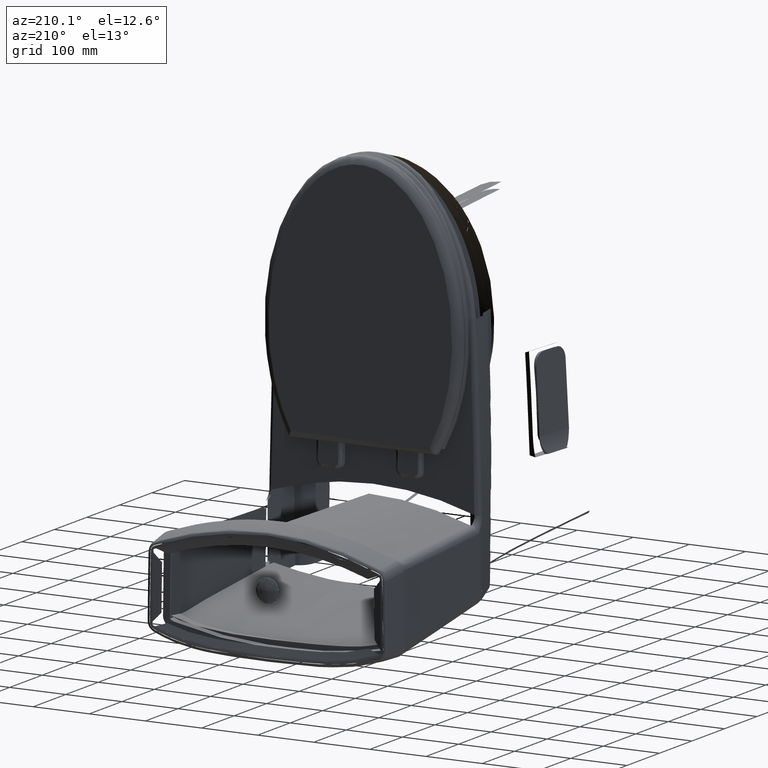
[diagram: clean part render]
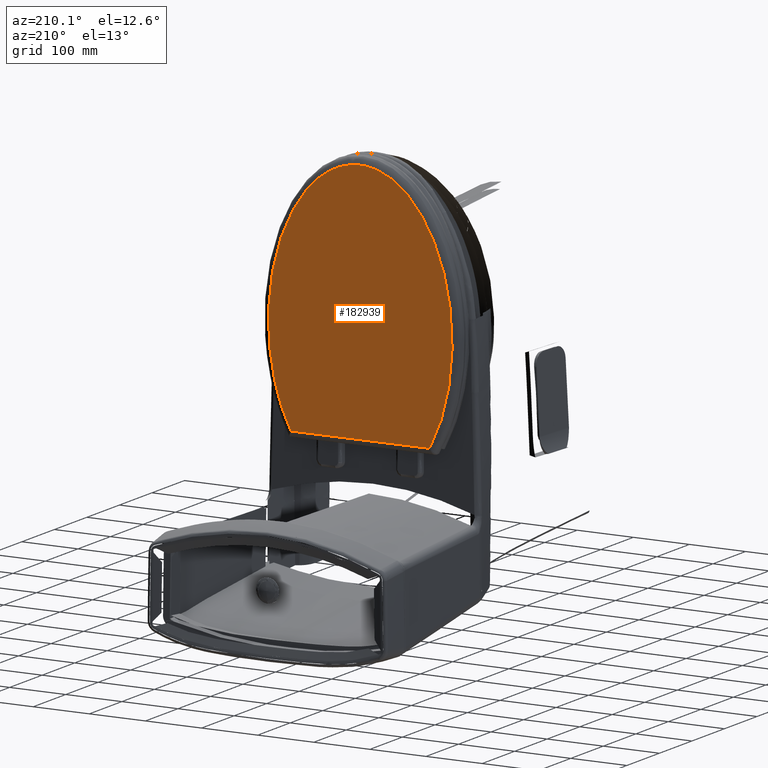
[diagram: same view with one face highlighted and labeled with its STEP entity id]
A machine part, auxiliary view. The second image highlights one B-rep face of the part: STEP entity #182939.
In plain terms, the highlighted planar face has unit normal (-0, 1, -0.005).
Its self-contained STEP definition (entity closure, byte-faithful):
#129 = CARTESIAN_POINT ( 'NONE',  ( 4.069400003222430200, -15.65548688357806000, 1.597295641101409200 ) ) ;
#767 = CARTESIAN_POINT ( 'NONE',  ( 5.865025075325847900, -11.90679658877258600, 1.578623984078401500 ) ) ;
#1381 = CARTESIAN_POINT ( 'NONE',  ( 3.672949090406367700, -16.14588716466432300, 1.599738250313174300 ) ) ;
#2007 = CARTESIAN_POINT ( 'NONE',  ( 6.440038422051012300, -8.012625528237274300, 1.559227708590661000 ) ) ;
#2630 = CARTESIAN_POINT ( 'NONE',  ( 6.433916513198163000, -8.231039045255238700, 1.560315593213276800 ) ) ;
#5470 = CARTESIAN_POINT ( 'NONE',  ( -4.843367208626697000, -0.9184416836992597100, 1.523892646446414200 ) ) ;
#5617 = ORIENTED_EDGE ( 'NONE', *, *, #38883, .T. ) ;
#5770 = CARTESIAN_POINT ( 'NONE',  ( 6.210670454255349200, -4.858357334867831900, 1.543516776609041600 ) ) ;
#8501 = CARTESIAN_POINT ( 'NONE',  ( -5.277233186623759800, -13.62511940719110400, 1.587182682142263700 ) ) ;
#9149 = CARTESIAN_POINT ( 'NONE',  ( -5.934464771579540900, -11.72364766561864400, 1.577711739133099000 ) ) ;
#9787 = CARTESIAN_POINT ( 'NONE',  ( -4.161075554060333000, -15.58274368989862400, 1.596933312756539000 ) ) ;
#10427 = CARTESIAN_POINT ( 'NONE',  ( -4.840094247583069300, -14.51242552880827900, 1.591602219752103400 ) ) ;
#11020 = CARTESIAN_POINT ( 'NONE',  ( -3.614086998906128800, -16.25145298579960600, 1.600264052780508500 ) ) ;
#11645 = CARTESIAN_POINT ( 'NONE',  ( 0.6032471218923791700, -17.97931753702635000, 1.608870287073928000 ) ) ;
#12297 = CARTESIAN_POINT ( 'NONE',  ( 2.690971611304584100, -17.05637485261728200, 1.604273250839597800 ) ) ;
#12919 = CARTESIAN_POINT ( 'NONE',  ( 3.239785896182616000, -16.58859777829604100, 1.601943324494300000 ) ) ;
#13566 = CARTESIAN_POINT ( 'NONE',  ( -0.03080844416650840200, -18.02843452345327100, 1.609114930914043100 ) ) ;
#14203 = CARTESIAN_POINT ( 'NONE',  ( -2.242440328702441000, -17.39201429221347800, 1.605945016710814500 ) ) ;
#14836 = CARTESIAN_POINT ( 'NONE',  ( 5.543238732184320000, -12.90199843127397700, 1.583580933412734900 ) ) ;
#15456 = CARTESIAN_POINT ( 'NONE',  ( 6.310426043309038700, -9.716157666724386700, 1.567712743907604800 ) ) ;
#16090 = CARTESIAN_POINT ( 'NONE',  ( 4.747923696945586700, -14.61978294850862300, 1.592136957221598400 ) ) ;
#16722 = CARTESIAN_POINT ( 'NONE',  ( 5.177478956724396400, -13.78153451233379900, 1.587961769089488700 ) ) ;
#17331 = CARTESIAN_POINT ( 'NONE',  ( 5.256157702013959800, -13.60481987445629800, 1.587081580312898400 ) ) ;
#18116 = CARTESIAN_POINT ( 'NONE',  ( -6.145464384096539100, -4.578808802823749200, 1.542124379448204200 ) ) ;
#18597 = CARTESIAN_POINT ( 'NONE',  ( 6.162970998328265000, -4.586811592097387100, 1.542164248386271400 ) ) ;
#18763 = CARTESIAN_POINT ( 'NONE',  ( -4.946915630498101500, -1.104943266292949000, 1.524821582494672300 ) ) ;
#19341 = B_SPLINE_CURVE_WITH_KNOTS ( 'NONE', 4,
 ( #152886, #182499, #172132, #141881, #97539 ),
 .UNSPECIFIED., .F., .F.,
 ( 5, 5 ),
 ( 0.0000000000000000000, 1.000000000000000000 ),
 .UNSPECIFIED. ) ;
#19391 = CARTESIAN_POINT ( 'NONE',  ( -5.732065097115504500, -2.959365181983500300, 1.534058176484057300 ) ) ;
#19867 = CARTESIAN_POINT ( 'NONE',  ( 6.091300861494806500, -4.229640311036819300, 1.540385232318129300 ) ) ;
#22654 = CARTESIAN_POINT ( 'NONE',  ( -5.256627545298639100, -1.743600033354797200, 1.528002634852340100 ) ) ;
#23305 = CARTESIAN_POINT ( 'NONE',  ( -6.037799365074866000, -11.32048193964094600, 1.575703631684245000 ) ) ;
#23937 = CARTESIAN_POINT ( 'NONE',  ( -5.141795464532712000, -13.92708097973413000, 1.588686707062338300 ) ) ;
#24562 = CARTESIAN_POINT ( 'NONE',  ( -3.260507881654243000, -16.61242208023816100, 1.602061985370639900 ) ) ;
#25200 = CARTESIAN_POINT ( 'NONE',  ( -6.114569675268376700, -10.96768671106536200, 1.573946412066898700 ) ) ;
#25232 = VERTEX_POINT ( 'NONE', #138382 ) ;
#25828 = CARTESIAN_POINT ( 'NONE',  ( -5.368508614368589200, -13.40546423938080700, 1.586088612979886300 ) ) ;
#26436 = CARTESIAN_POINT ( 'NONE',  ( 2.069811150086196400, -17.46383646001126900, 1.606302754936673300 ) ) ;
#27045 = CARTESIAN_POINT ( 'NONE',  ( -2.604584177143951100, -17.15002885004663100, 1.604739723654399000 ) ) ;
#27690 = CARTESIAN_POINT ( 'NONE',  ( 3.344764685470877900, -16.48659053932183100, 1.601435241967050800 ) ) ;
#28324 = CARTESIAN_POINT ( 'NONE',  ( -0.5213275860971441400, -18.00202621375120400, 1.608983394796632300 ) ) ;
#28960 = CARTESIAN_POINT ( 'NONE',  ( 1.653052129553447700, -17.66611326467293400, 1.607310264765141400 ) ) ;
#29604 = CARTESIAN_POINT ( 'NONE',  ( 4.080446047354328700, -15.64083980113032100, 1.597222686210979100 ) ) ;
#30234 = CARTESIAN_POINT ( 'NONE',  ( 5.419954078659437800, -13.21887531673693900, 1.585159249072408700 ) ) ;
#30853 = CARTESIAN_POINT ( 'NONE',  ( 6.346375006816735700, -9.409342126751987200, 1.566184542226387100 ) ) ;
#31461 = CARTESIAN_POINT ( 'NONE',  ( 6.408432481200085500, -6.514549738611598300, 1.551766020101409200 ) ) ;
#37379 = CARTESIAN_POINT ( 'NONE',  ( -6.292283176620559400, -5.422189804190006500, 1.546325132299353000 ) ) ;
#38028 = CARTESIAN_POINT ( 'NONE',  ( -6.382199338456605800, -9.148109200197446000, 1.564883372070816200 ) ) ;
#38655 = CARTESIAN_POINT ( 'NONE',  ( -6.407744778053883600, -8.838349010887284900, 1.563340503496264400 ) ) ;
#38883 = EDGE_CURVE ( 'NONE', #169061, #25232, #169808, .T. ) ;
#39305 = CARTESIAN_POINT ( 'NONE',  ( -6.434958249168718500, -8.403694287343975900, 1.561175554173902500 ) ) ;
#39932 = CARTESIAN_POINT ( 'NONE',  ( -4.183102891497660500, -15.55274541872660000, 1.596783895899426300 ) ) ;
#40553 = CARTESIAN_POINT ( 'NONE',  ( 1.706101795605865100, -17.64238892605176500, 1.607192097465590200 ) ) ;
#41171 = CARTESIAN_POINT ( 'NONE',  ( 2.433206898980755400, -17.23651542268814700, 1.605170503545081800 ) ) ;
#41809 = CARTESIAN_POINT ( 'NONE',  ( 2.523050405837422300, -17.17488219950469000, 1.604863517861470100 ) ) ;
#42420 = CARTESIAN_POINT ( 'NONE',  ( 2.312789955387967400, -17.31570454275775400, 1.605564932469897500 ) ) ;
#43063 = CARTESIAN_POINT ( 'NONE',  ( 1.466791874870594600, -17.74412844318643300, 1.607698846420808800 ) ) ;
#43714 = CARTESIAN_POINT ( 'NONE',  ( 3.886759489582142000, -15.88969891090966900, 1.598462215591139000 ) ) ;
#44361 = CARTESIAN_POINT ( 'NONE',  ( 4.213624069886742000, -15.46312025920695500, 1.596337492196197000 ) ) ;
#44977 = CARTESIAN_POINT ( 'NONE',  ( 4.715409742420985300, -14.67674905934903900, 1.592420696764412300 ) ) ;
#45594 = CARTESIAN_POINT ( 'NONE',  ( 6.099745799783525200, -10.94994797140394000, 1.573858066287440600 ) ) ;
#46251 = CARTESIAN_POINT ( 'NONE',  ( 6.372274619299187900, -6.048483420473845100, 1.549444614380939300 ) ) ;
#46401 = CARTESIAN_POINT ( 'NONE',  ( -6.375768123877018700, -6.160365284196709400, 1.550001872435466500 ) ) ;
#48284 = CARTESIAN_POINT ( 'NONE',  ( -5.334250159793327800, -1.922533202639473700, 1.528893873798349700 ) ) ;
#48910 = CARTESIAN_POINT ( 'NONE',  ( -5.399196711148298400, -2.077829274865056900, 1.529667379954720700 ) ) ;
#50257 = ORIENTED_EDGE ( 'NONE', *, *, #171492, .F. ) ;
#52145 = CARTESIAN_POINT ( 'NONE',  ( -3.397460222696711400, -16.47605921649287100, 1.601382782520846400 ) ) ;
#52798 = CARTESIAN_POINT ( 'NONE',  ( -6.302365967390750600, -9.885984463040177400, 1.568558616980301600 ) ) ;
#53429 = CARTESIAN_POINT ( 'NONE',  ( -5.373895902834664900, -13.39243683525595000, 1.586023725450687500 ) ) ;
#54068 = CARTESIAN_POINT ( 'NONE',  ( -5.830292379472838100, -12.09307584226028000, 1.579551804962348700 ) ) ;
#54701 = CARTESIAN_POINT ( 'NONE',  ( -5.854999127531690400, -12.00816139365108100, 1.579128858946415200 ) ) ;
#55005 = PLANE ( 'NONE',  #96593 ) ;
#55334 = CARTESIAN_POINT ( 'NONE',  ( -1.870863425078545400, -17.58844107492598100, 1.606923388995434000 ) ) ;
#55958 = CARTESIAN_POINT ( 'NONE',  ( 2.493147256012622700, -17.19564007229262300, 1.604966909659816700 ) ) ;
#56583 = CARTESIAN_POINT ( 'NONE',  ( 3.324645727357116200, -16.50642636625173100, 1.601534041201283500 ) ) ;
#57191 = CARTESIAN_POINT ( 'NONE',  ( -1.808289936515345500, -17.61814109420706100, 1.607071320332282600 ) ) ;
#57826 = CARTESIAN_POINT ( 'NONE',  ( -0.9145506042730667800, -17.92794310301516300, 1.608614397785874500 ) ) ;
#58462 = CARTESIAN_POINT ( 'NONE',  ( 6.130226392080721200, -10.80179953566266500, 1.573120161402019800 ) ) ;
#59104 = CARTESIAN_POINT ( 'NONE',  ( 4.091450723652078700, -15.62620445900413200, 1.597149789797283300 ) ) ;
#59737 = CARTESIAN_POINT ( 'NONE',  ( 6.397131640090618600, -6.359275979313374600, 1.550992625031194700 ) ) ;
#60366 = CARTESIAN_POINT ( 'NONE',  ( 4.576569096258870300, -14.91218669100973500, 1.593593375832943500 ) ) ;
#60958 = CARTESIAN_POINT ( 'NONE',  ( 6.274548144938496100, -5.251549668137958100, 1.545475208073860500 ) ) ;
#61110 = CARTESIAN_POINT ( 'NONE',  ( -6.381477519097516400, -6.222328299197129400, 1.550310500818581800 ) ) ;
#61732 = CARTESIAN_POINT ( 'NONE',  ( -5.372312489906963900, -2.012908112441655500, 1.529344017501817800 ) ) ;
#62353 = CARTESIAN_POINT ( 'NONE',  ( -6.234911822741016100, -5.058718759798943600, 1.544514738151391500 ) ) ;
#63459 = CARTESIAN_POINT ( 'NONE',  ( 6.215864464768158000, -4.888453659806001100, 1.543666681845810700 ) ) ;
#63623 = CARTESIAN_POINT ( 'NONE',  ( -5.928417865437961800, -3.641640996259315300, 1.537456488781288300 ) ) ;
#66844 = CARTESIAN_POINT ( 'NONE',  ( -4.807989323986355100, -14.57052235676041400, 1.591891591268837800 ) ) ;
#67502 = CARTESIAN_POINT ( 'NONE',  ( -6.346624996539056000, -9.518684598972582100, 1.566729151993624200 ) ) ;
#68122 = CARTESIAN_POINT ( 'NONE',  ( -6.431862285599835100, -6.905028328967998300, 1.553710926166829200 ) ) ;
#68769 = CARTESIAN_POINT ( 'NONE',  ( -6.446899224035910000, -7.560542173439328600, 1.556975941270001700 ) ) ;
#69398 = CARTESIAN_POINT ( 'NONE',  ( -5.879355166931157200, -11.92312335176736600, 1.578705297331347100 ) ) ;
#69999 = CARTESIAN_POINT ( 'NONE',  ( 1.217024772801232200, -17.83599212453439600, 1.608156405327686900 ) ) ;
#70614 = CARTESIAN_POINT ( 'NONE',  ( 2.548594409198250900, -17.15695886193912000, 1.604774244450555300 ) ) ;
#71263 = CARTESIAN_POINT ( 'NONE',  ( -0.7383375968364149800, -17.96664948624503600, 1.608807188532836300 ) ) ;
#71896 = CARTESIAN_POINT ( 'NONE',  ( -2.450353956195756600, -17.25893993977663900, 1.605282193389852500 ) ) ;
#72521 = CARTESIAN_POINT ( 'NONE',  ( 0.8467442703912430000, -17.93155620085119400, 1.608632395260242400 ) ) ;
#73159 = CARTESIAN_POINT ( 'NONE',  ( 6.442116602671370100, -7.168163547631855300, 1.555021571448645500 ) ) ;
#73803 = CARTESIAN_POINT ( 'NONE',  ( 4.754365906586535600, -14.60841612112686300, 1.592080340781425000 ) ) ;
#74416 = CARTESIAN_POINT ( 'NONE',  ( 5.327498664031846700, -13.43866568446298100, 1.586253991521813200 ) ) ;
#75026 = CARTESIAN_POINT ( 'NONE',  ( 6.443347284663992100, -7.825225434568351600, 1.558294297127637500 ) ) ;
#75649 = CARTESIAN_POINT ( 'NONE',  ( 6.189264520936687200, -10.50366832628606200, 1.571635215070838800 ) ) ;
#75797 = CARTESIAN_POINT ( 'NONE',  ( -6.384250125969114900, -6.253404599518815700, 1.550465287158872200 ) ) ;
#76262 = CARTESIAN_POINT ( 'NONE',  ( 5.822418329154587900, -3.190487437748997100, 1.535209369164152600 ) ) ;
#77518 = CARTESIAN_POINT ( 'NONE',  ( 5.948646904430016300, -3.648412756840125700, 1.537490225862603100 ) ) ;
#78176 = CARTESIAN_POINT ( 'NONE',  ( 5.524530182558190300, -2.313687953378887200, 1.530842163615534700 ) ) ;
#78332 = CARTESIAN_POINT ( 'NONE',  ( -5.095390499239584900, -1.393000296064188700, 1.526256350804023200 ) ) ;
#78811 = CARTESIAN_POINT ( 'NONE',  ( 5.584818168098157900, -2.474124139212982700, 1.531641271982799600 ) ) ;
#81636 = CARTESIAN_POINT ( 'NONE',  ( -6.390420588443705100, -9.055245738524558200, 1.564420833236580100 ) ) ;
#82268 = CARTESIAN_POINT ( 'NONE',  ( -4.820851850595934400, -14.54730906258216900, 1.591775969359984900 ) ) ;
#82917 = CARTESIAN_POINT ( 'NONE',  ( -3.833332233151834700, -16.00635453571125700, 1.599043254399294100 ) ) ;
#83558 = CARTESIAN_POINT ( 'NONE',  ( -6.171929515866279000, -10.66950363016113600, 1.572461207293410800 ) ) ;
#84187 = CARTESIAN_POINT ( 'NONE',  ( -5.437502818313849000, -13.23590976879510400, 1.585244087812349700 ) ) ;
#84802 = CARTESIAN_POINT ( 'NONE',  ( -1.749965474951093100, -17.64497014329156200, 1.607204951798839400 ) ) ;
#85427 = CARTESIAN_POINT ( 'NONE',  ( 3.125730824102444400, -16.69528635384018500, 1.602474724043436900 ) ) ;
#86055 = CARTESIAN_POINT ( 'NONE',  ( -1.010006099088360400, -17.90534347177525000, 1.608501832383704100 ) ) ;
#86677 = CARTESIAN_POINT ( 'NONE',  ( -1.136906458264120800, -17.87213156727374800, 1.608336408835658000 ) ) ;
#87311 = CARTESIAN_POINT ( 'NONE',  ( -1.389426146062619600, -17.79515097136230000, 1.607952979984765400 ) ) ;
#87931 = CARTESIAN_POINT ( 'NONE',  ( 3.482718393622271400, -16.34972948325494700, 1.600753557881237300 ) ) ;
#88566 = CARTESIAN_POINT ( 'NONE',  ( 6.356271126932884200, -9.317036094291257300, 1.565724779874730500 ) ) ;
#89199 = CARTESIAN_POINT ( 'NONE',  ( 3.348742662757171500, -16.48265342123642400, 1.601415631781224300 ) ) ;
#89822 = CARTESIAN_POINT ( 'NONE',  ( 6.384753364264200000, -9.038878837808599800, 1.564339320755273800 ) ) ;
#90439 = CARTESIAN_POINT ( 'NONE',  ( 6.055135896807021500, -11.15614724385594200, 1.574885113583175400 ) ) ;
#91064 = CARTESIAN_POINT ( 'NONE',  ( 5.462961364912338500, -2.154330155086594100, 1.530048426532321300 ) ) ;
#91225 = CARTESIAN_POINT ( 'NONE',  ( -6.109500475663167200, -4.400185698024191800, 1.541234684858455100 ) ) ;
#92352 = CARTESIAN_POINT ( 'NONE',  ( 5.087245561531357700, -1.282937966627569500, 1.525708153852922900 ) ) ;
#96386 = CARTESIAN_POINT ( 'NONE',  ( -5.384595292956092300, -13.36643727635388000, 1.585894225580968000 ) ) ;
#96593 = AXIS2_PLACEMENT_3D ( 'NONE', #141046, #143591, #187347 ) ;
#97046 = CARTESIAN_POINT ( 'NONE',  ( -6.444379004648611800, -7.341739954187627100, 1.555886120578052500 ) ) ;
#97539 = CARTESIAN_POINT ( 'NONE',  ( 4.882393465144085500, -0.9073392971712737100, 1.523837353666613900 ) ) ;
#97676 = CARTESIAN_POINT ( 'NONE',  ( -3.446041409587408600, -16.42714204722861700, 1.601139133481764400 ) ) ;
#98329 = CARTESIAN_POINT ( 'NONE',  ( -5.838597848508204200, -12.06475307981926500, 1.579410733569499600 ) ) ;
#98950 = CARTESIAN_POINT ( 'NONE',  ( -4.884633423395710500, -14.43058546912347300, 1.591194586788158700 ) ) ;
#99587 = CARTESIAN_POINT ( 'NONE',  ( -0.9463957906813529300, -17.92062982566244900, 1.608577971438376100 ) ) ;
#100208 = CARTESIAN_POINT ( 'NONE',  ( -2.647751665030486200, -17.11909368583220800, 1.604585640260847800 ) ) ;
#100828 = CARTESIAN_POINT ( 'NONE',  ( 1.684006749344825200, -17.65235095012882000, 1.607241716782904300 ) ) ;
#101464 = CARTESIAN_POINT ( 'NONE',  ( -0.08545446909423749800, -18.02799539135253300, 1.609112743626940100 ) ) ;
#102091 = CARTESIAN_POINT ( 'NONE',  ( -1.995458398239900300, -17.52643722678866600, 1.606614557141232900 ) ) ;
#102735 = CARTESIAN_POINT ( 'NONE',  ( 4.385691744579135700, -15.21646741175263000, 1.595108951859805400 ) ) ;
#103355 = CARTESIAN_POINT ( 'NONE',  ( 4.734935737044309300, -14.64259889117582400, 1.592250599965452600 ) ) ;
#103978 = CARTESIAN_POINT ( 'NONE',  ( 3.991633335735280200, -15.75701173018261200, 1.597801320923630400 ) ) ;
#104592 = CARTESIAN_POINT ( 'NONE',  ( 6.136178326393262800, -10.77215921049515200, 1.572972527438476700 ) ) ;
#105232 = CARTESIAN_POINT ( 'NONE',  ( 6.442913818369633300, -7.856422616458681700, 1.558449685562270000 ) ) ;
#111250 = CARTESIAN_POINT ( 'NONE',  ( -6.236259018805522000, -10.30934902487394600, 1.570667331744357400 ) ) ;
#111874 = CARTESIAN_POINT ( 'NONE',  ( -6.166246308655122900, -10.69947798647918100, 1.572610505023296100 ) ) ;
#112503 = CARTESIAN_POINT ( 'NONE',  ( -3.393364227078815400, -16.48014725860776900, 1.601403144441807800 ) ) ;
#113135 = CARTESIAN_POINT ( 'NONE',  ( -4.801510714817445600, -14.58216184876030000, 1.591949565818818100 ) ) ;
#113769 = CARTESIAN_POINT ( 'NONE',  ( -3.405572954748315800, -16.46794209446984100, 1.601342352360793300 ) ) ;
#114388 = CARTESIAN_POINT ( 'NONE',  ( 1.000852013896059900, -17.89686972731751500, 1.608459627295849100 ) ) ;
#115024 = CARTESIAN_POINT ( 'NONE',  ( 1.697264863909478700, -17.64638303916982700, 1.607211991531775700 ) ) ;
#115644 = CARTESIAN_POINT ( 'NONE',  ( 3.336719883747354000, -16.49453366593209600, 1.601474805471482900 ) ) ;
#116267 = CARTESIAN_POINT ( 'NONE',  ( 0.1326585828458833600, -18.02787211594577200, 1.609112129757151100 ) ) ;
#116910 = CARTESIAN_POINT ( 'NONE',  ( -1.763481229584526100, -17.63882068279866600, 1.607174322259034900 ) ) ;
#117551 = CARTESIAN_POINT ( 'NONE',  ( 5.674399711963712200, -12.52078567874194400, 1.581682170554862000 ) ) ;
#118200 = CARTESIAN_POINT ( 'NONE',  ( 5.311186744779419700, -13.47713603122186800, 1.586445606477722600 ) ) ;
#118816 = CARTESIAN_POINT ( 'NONE',  ( 6.353033865235756700, -9.347783284635449200, 1.565877926967789400 ) ) ;
#119454 = CARTESIAN_POINT ( 'NONE',  ( 6.336129815503108300, -9.501585679867727000, 1.566643993377659500 ) ) ;
#120086 = CARTESIAN_POINT ( 'NONE',  ( 5.762881917734857100, -12.24375817309440600, 1.580302338593349200 ) ) ;
#120876 = CARTESIAN_POINT ( 'NONE',  ( -6.366941360789948800, -6.067515159941664600, 1.549539400044325000 ) ) ;
#125378 = CARTESIAN_POINT ( 'NONE',  ( -6.168767282865082400, -4.698303906086565000, 1.542719566431905800 ) ) ;
#125996 = CARTESIAN_POINT ( 'NONE',  ( -6.447100953148228600, -7.748390167278061300, 1.557911583657974200 ) ) ;
#126648 = CARTESIAN_POINT ( 'NONE',  ( -4.335108205848360500, -15.33911677405804300, 1.595719843894729800 ) ) ;
#127299 = CARTESIAN_POINT ( 'NONE',  ( -6.183096153114034300, -10.60963630540454100, 1.572163017214466700 ) ) ;
#127916 = CARTESIAN_POINT ( 'NONE',  ( -4.234187719654672200, -15.48222934602077300, 1.596432665994031800 ) ) ;
#128526 = CARTESIAN_POINT ( 'NONE',  ( -3.063627893253777000, -16.79338853784295400, 1.602963352001777600 ) ) ;
#129164 = CARTESIAN_POINT ( 'NONE',  ( 1.591066813408608800, -17.69298664965386800, 1.607444116981364700 ) ) ;
#129782 = CARTESIAN_POINT ( 'NONE',  ( 2.544382667908730200, -17.15992554372681100, 1.604789021040100100 ) ) ;
#130427 = CARTESIAN_POINT ( 'NONE',  ( 0.3501934599715190700, -18.01514015089805200, 1.609048713914775800 ) ) ;
#131067 = CARTESIAN_POINT ( 'NONE',  ( 0.7295896958380502200, -17.95616406642817600, 1.608754963230652400 ) ) ;
#131694 = CARTESIAN_POINT ( 'NONE',  ( 6.414273798997911900, -8.666911163507437600, 1.562486606162746300 ) ) ;
#132332 = CARTESIAN_POINT ( 'NONE',  ( 4.087804031080851000, -15.63106140969536800, 1.597173981530137100 ) ) ;
#132947 = CARTESIAN_POINT ( 'NONE',  ( 5.736812422853499300, -12.32729853926960900, 1.580718440478862100 ) ) ;
#133566 = CARTESIAN_POINT ( 'NONE',  ( 6.446468011339228500, -7.543239877075715000, 1.556889769804031200 ) ) ;
#134170 = CARTESIAN_POINT ( 'NONE',  ( 6.394734420606852200, -6.328296371604754000, 1.550838320298687500 ) ) ;
#135421 = CARTESIAN_POINT ( 'NONE',  ( 6.226096372775896400, -4.948812809258598100, 1.543967321628400900 ) ) ;
#137327 = CARTESIAN_POINT ( 'NONE',  ( 5.273760765167258700, -1.681073564042159000, 1.527691207049546800 ) ) ;
#138382 = CARTESIAN_POINT ( 'NONE',  ( 4.882393465144085500, -0.9073392971712737100, 1.523837353666613900 ) ) ;
#140100 = CARTESIAN_POINT ( 'NONE',  ( -6.447186324018970200, -7.717010161307499100, 1.557755284603957500 ) ) ;
#140751 = CARTESIAN_POINT ( 'NONE',  ( -6.373617233580765700, -9.241001723959700000, 1.565346055659157400 ) ) ;
#141046 = CARTESIAN_POINT ( 'NONE',  ( -0.006244589028661417900, -7.513677744413385500, 1.556742520972480100 ) ) ;
#141384 = CARTESIAN_POINT ( 'NONE',  ( -5.509736628682754900, -13.05152060400390300, 1.584325673279065400 ) ) ;
#141881 = CARTESIAN_POINT ( 'NONE',  ( 2.450953026750065400, -0.9100272251248551200, 1.523850740197191200 ) ) ;
#142012 = CARTESIAN_POINT ( 'NONE',  ( -6.447178288029662400, -7.654410211684748300, 1.557443483742193800 ) ) ;
#142654 = CARTESIAN_POINT ( 'NONE',  ( -4.138940477430474600, -15.61270772757724700, 1.597082559101883800 ) ) ;
#143305 = CARTESIAN_POINT ( 'NONE',  ( 1.857866600199760800, -17.57324154985303700, 1.606847684966153900 ) ) ;
#143591 = DIRECTION ( 'NONE',  ( -6.708774373605624500E-010, 0.004980786662118902300, 0.9999875958051812600 ) ) ;
#143910 = CARTESIAN_POINT ( 'NONE',  ( -2.591559705492993100, -17.15926792095443800, 1.604785742075105900 ) ) ;
#144552 = CARTESIAN_POINT ( 'NONE',  ( 0.8377857183015182700, -17.93354113588003100, 1.608642281914784100 ) ) ;
#145198 = CARTESIAN_POINT ( 'NONE',  ( -0.2672771952820194300, -18.02222410843263500, 1.609083997619397800 ) ) ;
#145843 = CARTESIAN_POINT ( 'NONE',  ( -2.617549330208383200, -17.14079519510689700, 1.604693732209847300 ) ) ;
#146466 = CARTESIAN_POINT ( 'NONE',  ( 5.014423777735091300, -14.12785859626026100, 1.589686756755172900 ) ) ;
#147081 = CARTESIAN_POINT ( 'NONE',  ( 5.294784863607470800, -13.51557440653898800, 1.586637062188665800 ) ) ;
#147728 = CARTESIAN_POINT ( 'NONE',  ( 6.401758381254006200, -6.421374177859166600, 1.551301926749996300 ) ) ;
#148353 = CARTESIAN_POINT ( 'NONE',  ( 5.959079359934842800, -11.56428036198651600, 1.576917962725743000 ) ) ;
#148980 = CARTESIAN_POINT ( 'NONE',  ( 6.333942871874876700, -5.678313895799453400, 1.547600856053664500 ) ) ;
#149767 = CARTESIAN_POINT ( 'NONE',  ( -4.843367208626697000, -0.9184416836992597100, 1.523892646446414200 ) ) ;
#150225 = CARTESIAN_POINT ( 'NONE',  ( 5.993561692893753600, -3.821497474407872000, 1.538352334639179000 ) ) ;
#150388 = CARTESIAN_POINT ( 'NONE',  ( -5.388464421998446800, -2.051834857748273700, 1.529537905709832800 ) ) ;
#151030 = CARTESIAN_POINT ( 'NONE',  ( -6.344506888459180900, -5.851525657732319800, 1.548463589083044500 ) ) ;
#152886 = CARTESIAN_POINT ( 'NONE',  ( -4.843367208626697000, -0.9184416836992597100, 1.523892646446414200 ) ) ;
#154930 = CARTESIAN_POINT ( 'NONE',  ( -2.827574382105877400, -16.98450782655535800, 1.603915288372238300 ) ) ;
#155555 = CARTESIAN_POINT ( 'NONE',  ( -5.647815640265932300, -12.67700086847736800, 1.582460247143911800 ) ) ;
#156197 = CARTESIAN_POINT ( 'NONE',  ( -4.146360920289724000, -15.60269300338113900, 1.597032677273459800 ) ) ;
#156831 = CARTESIAN_POINT ( 'NONE',  ( -4.972272773058291400, -14.26512475957092400, 1.590370452011390600 ) ) ;
#157469 = CARTESIAN_POINT ( 'NONE',  ( -3.417732839398086100, -16.45574565945536000, 1.601281603758252200 ) ) ;
#158089 = CARTESIAN_POINT ( 'NONE',  ( -0.1400339886362958200, -18.02705431725440400, 1.609108056242865200 ) ) ;
#158736 = CARTESIAN_POINT ( 'NONE',  ( 2.535851678185669900, -17.16591735454053900, 1.604818865335954100 ) ) ;
#159358 = CARTESIAN_POINT ( 'NONE',  ( 0.8197587145253231200, -17.93747284163957900, 1.608661865133211400 ) ) ;
#159989 = CARTESIAN_POINT ( 'NONE',  ( -1.776934191738116300, -17.63266562765071300, 1.607143664853143900 ) ) ;
#160628 = CARTESIAN_POINT ( 'NONE',  ( 0.7927149185571936700, -17.94327679021349200, 1.608690773703301400 ) ) ;
#161257 = CARTESIAN_POINT ( 'NONE',  ( 6.441869358363536700, -7.918917422824177000, 1.558760962720709300 ) ) ;
#161900 = CARTESIAN_POINT ( 'NONE',  ( 4.864894729898249000, -14.41252748220545500, 1.591104649232908600 ) ) ;
#162514 = CARTESIAN_POINT ( 'NONE',  ( 5.322087417415417600, -13.45146815486862700, 1.586317758683001300 ) ) ;
#163130 = CARTESIAN_POINT ( 'NONE',  ( 5.788624306795535200, -12.16002767877063000, 1.579885289708123000 ) ) ;
#163756 = CARTESIAN_POINT ( 'NONE',  ( 4.043562420453161700, -15.68951987635665400, 1.597465154263254300 ) ) ;
#163916 = CARTESIAN_POINT ( 'NONE',  ( -5.404526108900572700, -2.090801838997720100, 1.529731994327039800 ) ) ;
#165153 = CARTESIAN_POINT ( 'NONE',  ( -6.180097821006078200, -4.758343509355316100, 1.543018614588916600 ) ) ;
#165638 = CARTESIAN_POINT ( 'NONE',  ( 5.918031140265522800, -3.533430420903297200, 1.536917516252849000 ) ) ;
#166279 = CARTESIAN_POINT ( 'NONE',  ( 5.902403565608887300, -3.476202263848970900, 1.536632471465259900 ) ) ;
#166900 = CARTESIAN_POINT ( 'NONE',  ( 6.241182192734974900, -5.039442608755212700, 1.544418734934462900 ) ) ;
#167857 = EDGE_LOOP ( 'NONE', ( #5617, #50257 ) ) ;
#169061 = VERTEX_POINT ( 'NONE', #5470 ) ;
#169683 = CARTESIAN_POINT ( 'NONE',  ( -2.707957578695090500, -17.07506540962158300, 1.604366342049333700 ) ) ;
#169808 = B_SPLINE_CURVE_WITH_KNOTS ( 'NONE', 3,
 ( #149767, #18763, #78332, #22654, #48284, #61732, #150388, #48910, #163916, #180656, #19391, #63623, #179388, #91225, #18116, #125378, #165153, #62353, #37379, #151030, #120876, #46401, #61110, #75797, #178743, #68122, #97046, #68769, #142012, #140100, #125996, #171619, #39305, #38655, #81636, #38028, #186411, #140751, #67502, #52798, #111250, #184502, #127299, #83558, #111874, #25200, #23305, #9149, #69398, #54701, #98329, #54068, #185139, #155555, #141384, #84187, #170351, #96386, #53429, #25828, #8501, #23937, #156831, #98950, #10427, #82268, #66844, #113135, #172269, #187055, #126648, #127916, #39932, #9787, #156197, #142654, #171007, #82917, #11020, #185765, #97676, #157469, #113769, #52145, #112503, #24562, #128526, #154930, #169683, #100208, #145843, #27045, #175432, #143910, #71896, #14203, #102091, #55334, #57191, #159989, #116910, #174770, #84802, #187671, #87311, #86677, #86055, #99587, #57826, #188951, #189581, #172913, #71263, #28324, #145198, #158089, #101464, #174143, #13566, #116267, #130427, #11645, #131067, #160628, #159358, #144552, #72521, #114388, #69999, #43063, #129164, #28960, #100828, #115024, #40553, #190216, #143305, #26436, #42420, #41171, #55958, #41809, #158736, #129782, #70614, #12297, #173535, #85427, #12919, #188294, #56583, #115644, #27690, #89199, #87931, #1381, #43714, #103978, #163756, #129, #29604, #132332, #59104, #44361, #102735, #60366, #177975, #44977, #103355, #16090, #73803, #161900, #146466, #16722, #17331, #147081, #118200, #162514, #74416, #30234, #14836, #117551, #132947, #120086, #176078, #163130, #767, #148353, #90439, #45594, #176698, #58462, #104592, #75649, #178588, #15456, #119454, #30853, #118816, #88566, #89822, #131694, #2630, #2007, #161257, #105232, #75026, #133566, #73159, #177341, #31461, #147728, #59737, #134170, #46251, #148980, #60958, #166900, #135421, #63459, #5770, #18597, #19867, #150225, #77518, #165638, #166279, #76262, #179215, #78811, #78176, #180490, #91064, #137327, #92352, #181125 ),
 .UNSPECIFIED., .F., .F.,
 ( 4, 1, 1, 1, 1, 2, 2, 2, 1, 1, 2, 2, 1, 1, 1, 2, 2, 1, 1, 1, 2, 2, 1, 1, 1, 2, 2, 1, 1, 1, 2, 2, 1, 1, 1, 2, 2, 1, 1, 1, 1, 2, 2, 1, 1, 1, 1, 2, 2, 1, 1, 1, 1, 2, 2, 1, 1, 1, 1, 1, 2, 2, 1, 1, 1, 1, 1, 2, 2, 1, 1, 1, 1, 1, 2, 2, 1, 1, 1, 1, 1, 2, 2, 1, 1, 1, 2, 2, 1, 1, 1, 1, 2, 2, 1, 1, 1, 1, 1, 2, 2, 1, 1, 1, 1, 1, 2, 2, 1, 1, 1, 1, 1, 2, 2, 1, 1, 1, 1, 1, 2, 2, 1, 1, 1, 1, 2, 2, 1, 1, 1, 1, 2, 2, 1, 1, 1, 2, 2, 1, 1, 1, 2, 2, 1, 1, 1, 2, 2, 1, 1, 1, 2, 2, 1, 1, 1, 2, 2, 1, 1, 1, 2, 2, 1, 1, 2, 2, 1, 1, 2, 2, 4 ),
 ( 0.0000000000000000000, 0.01562499999999915000, 0.02343749999999873000, 0.02734374999999851500, 0.02929687499999842500, 0.03027343749999839000, 0.03124999999999836200, 0.06249999999999723800, 0.07812499999999665500, 0.08593749999999633600, 0.08984374999999617000, 0.09374999999999598900, 0.1093749999999952700, 0.1171874999999948800, 0.1210937499999946700, 0.1230468749999945900, 0.1249999999999944800, 0.1406249999999937300, 0.1484374999999933900, 0.1523437499999932300, 0.1542968749999931700, 0.1562499999999930900, 0.1718749999999922600, 0.1796874999999918400, 0.1835937499999916200, 0.1855468749999915100, 0.1874999999999914000, 0.2031249999999907900, 0.2109374999999904800, 0.2148437499999903100, 0.2167968749999902300, 0.2187499999999901500, 0.2343749999999892300, 0.2421874999999887600, 0.2460937499999886200, 0.2480468749999885400, 0.2499999999999884500, 0.2656249999999872900, 0.2734374999999865700, 0.2773437499999862300, 0.2792968749999860700, 0.2802734374999859600, 0.2812499999999858400, 0.2968749999999855100, 0.3046874999999852900, 0.3085937499999852300, 0.3105468749999851200, 0.3115234374999850700, 0.3124999999999850100, 0.3281249999999827900, 0.3359374999999816800, 0.3398437499999811300, 0.3417968749999808500, 0.3427734374999806800, 0.3437499999999805200, 0.3593749999999763500, 0.3671874999999743000, 0.3710937499999733500, 0.3730468749999728600, 0.3740234374999725200, 0.3745117187499723600, 0.3749999999999721900, 0.3906249999999678000, 0.3984374999999656400, 0.4023437499999644700, 0.4042968749999639200, 0.4052734374999636400, 0.4057617187499634700, 0.4062499999999633600, 0.4218749999999594800, 0.4296874999999575300, 0.4335937499999565300, 0.4355468749999560400, 0.4365234374999558100, 0.4370117187499557600, 0.4374999999999556500, 0.4531249999999497100, 0.4609374999999467100, 0.4648437499999452100, 0.4667968749999444900, 0.4677734374999441000, 0.4682617187499438800, 0.4687499999999437100, 0.4843749999999365500, 0.4921874999999330000, 0.4960937499999312200, 0.4980468749999303300, 0.4999999999999294500, 0.5156249999999222800, 0.5234374999999188400, 0.5273437499999170700, 0.5292968749999161800, 0.5302734374999156200, 0.5312499999999151800, 0.5468749999999080700, 0.5546874999999045200, 0.5585937499999027400, 0.5605468749999019700, 0.5615234374999016300, 0.5620117187499014100, 0.5624999999999010800, 0.5781249999998949700, 0.5859374999998918600, 0.5898437499998904200, 0.5917968749998897500, 0.5927734374998895300, 0.5932617187498893100, 0.5937499999998892000, 0.6093749999998836500, 0.6171874999998809800, 0.6210937499998796500, 0.6230468749998791000, 0.6240234374998787600, 0.6245117187498787600, 0.6249999999998787600, 0.6406249999998789900, 0.6484374999998792100, 0.6523437499998794300, 0.6542968749998795400, 0.6552734374998796500, 0.6557617187498797600, 0.6562499999998797600, 0.6718749999998837600, 0.6796874999998856500, 0.6835937499998865400, 0.6855468749998868700, 0.6865234374998872000, 0.6874999999998874200, 0.7031249999998930900, 0.7109374999998958600, 0.7148437499998971900, 0.7167968749998978600, 0.7177734374998980800, 0.7187499999998984100, 0.7343749999999030800, 0.7421874999999054100, 0.7460937499999066300, 0.7480468749999073000, 0.7499999999999080700, 0.7656249999999135100, 0.7734374999999161800, 0.7773437499999175100, 0.7792968749999182900, 0.7812499999999190600, 0.7968749999999246200, 0.8046874999999273900, 0.8085937499999288300, 0.8105468749999295000, 0.8124999999999301700, 0.8281249999999357200, 0.8359374999999384900, 0.8398437499999399400, 0.8417968749999408300, 0.8437499999999416000, 0.8593749999999470400, 0.8671874999999497100, 0.8710937499999510400, 0.8730468749999517100, 0.8749999999999523700, 0.8906249999999582600, 0.8984374999999611400, 0.9023437499999625900, 0.9042968749999633600, 0.9062499999999641400, 0.9218749999999701400, 0.9296874999999731300, 0.9335937499999746900, 0.9374999999999761300, 0.9531249999999821300, 0.9609374999999851200, 0.9648437499999865700, 0.9687499999999880100, 1.000000000000000000 ),
 .UNSPECIFIED. ) ;
#170351 = CARTESIAN_POINT ( 'NONE',  ( -5.400587336985071700, -13.32738667544770200, 1.585699720445418400 ) ) ;
#171007 = CARTESIAN_POINT ( 'NONE',  ( -4.014180807221499100, -15.78033262932585100, 1.597917473416890600 ) ) ;
#171492 = EDGE_CURVE ( 'NONE', #169061, #25232, #19341, .T. ) ;
#171619 = CARTESIAN_POINT ( 'NONE',  ( -6.445538524800531000, -8.029656635846116300, 1.559312529311770000 ) ) ;
#172132 = CARTESIAN_POINT ( 'NONE',  ( 0.01951277082620752500, -0.9127734482441652900, 1.523864417087125200 ) ) ;
#172269 = CARTESIAN_POINT ( 'NONE',  ( -4.692110438562947300, -14.77783541318111900, 1.592924186261390800 ) ) ;
#172913 = CARTESIAN_POINT ( 'NONE',  ( -0.8871893901311288500, -17.93404853984048200, 1.608644808059751300 ) ) ;
#173535 = CARTESIAN_POINT ( 'NONE',  ( 2.894505375322079300, -16.89881216602015000, 1.603488455113533300 ) ) ;
#174143 = CARTESIAN_POINT ( 'NONE',  ( -0.04905774124533280500, -18.02837188177419800, 1.609114618893090000 ) ) ;
#174610 = FACE_OUTER_BOUND ( 'NONE', #167857, .T. ) ;
#174770 = CARTESIAN_POINT ( 'NONE',  ( -1.754509302410911100, -17.64290855403077500, 1.607194683332126000 ) ) ;
#175432 = CARTESIAN_POINT ( 'NONE',  ( -2.595936009482436600, -17.15616973291928500, 1.604770310467111400 ) ) ;
#176078 = CARTESIAN_POINT ( 'NONE',  ( 5.780110734370049700, -12.18792741644396200, 1.580024254067432100 ) ) ;
#176698 = CARTESIAN_POINT ( 'NONE',  ( 6.118131822746403400, -10.86111984462736900, 1.573415626862600700 ) ) ;
#177341 = CARTESIAN_POINT ( 'NONE',  ( 6.422143298481229200, -6.732157220903443000, 1.552849890000517700 ) ) ;
#177975 = CARTESIAN_POINT ( 'NONE',  ( 4.669540704900059700, -14.75591656429341300, 1.592815018077579100 ) ) ;
#178588 = CARTESIAN_POINT ( 'NONE',  ( 6.251825195738478900, -10.14264975878404900, 1.569837036342059700 ) ) ;
#178743 = CARTESIAN_POINT ( 'NONE',  ( -6.408317188802286100, -6.532234615837639400, 1.551854097196074800 ) ) ;
#179215 = CARTESIAN_POINT ( 'NONE',  ( 5.718868756998722000, -2.854394390937260900, 1.533535340564915900 ) ) ;
#179388 = CARTESIAN_POINT ( 'NONE',  ( -6.018517767354732800, -3.987735304154517400, 1.539180332016328000 ) ) ;
#180490 = CARTESIAN_POINT ( 'NONE',  ( 5.483707584830648700, -2.207294224865171500, 1.530312232550865600 ) ) ;
#180656 = CARTESIAN_POINT ( 'NONE',  ( -5.581056078919876200, -2.522664039636194100, 1.531883034379343500 ) ) ;
#181125 = CARTESIAN_POINT ( 'NONE',  ( 4.882393465144085500, -0.9073392971712737100, 1.523837353666613900 ) ) ;
#182499 = CARTESIAN_POINT ( 'NONE',  ( -2.411927301803266300, -0.9155782297645769200, 1.523878385647587000 ) ) ;
#182939 = ADVANCED_FACE ( 'NONE', ( #174610 ), #55005, .T. ) ;
#184502 = CARTESIAN_POINT ( 'NONE',  ( -6.199587690868186800, -10.51974331922955300, 1.571715273862949000 ) ) ;
#185139 = CARTESIAN_POINT ( 'NONE',  ( -5.755217177357860900, -12.34614154212186000, 1.580812286910488800 ) ) ;
#185765 = CARTESIAN_POINT ( 'NONE',  ( -3.502400573992168600, -16.36935376733678600, 1.600851298779884400 ) ) ;
#186411 = CARTESIAN_POINT ( 'NONE',  ( -6.376541483510315800, -9.209997668258694100, 1.565191629154551300 ) ) ;
#187055 = CARTESIAN_POINT ( 'NONE',  ( -4.531952497754383000, -15.04456992392829000, 1.594252750542063400 ) ) ;
#187347 = DIRECTION ( 'NONE',  ( 0.0000000000000000000, -0.9999875958051812600, 0.004980786662118902300 ) ) ;
#187671 = CARTESIAN_POINT ( 'NONE',  ( -1.603675540370426600, -17.71107025445234800, 1.607534186532907400 ) ) ;
#188294 = CARTESIAN_POINT ( 'NONE',  ( 3.296424019145198300, -16.53402207316042200, 1.601671491216208900 ) ) ;
#188951 = CARTESIAN_POINT ( 'NONE',  ( -0.9008940889113477000, -17.93100667196827700, 1.608629656967694100 ) ) ;
#189581 = CARTESIAN_POINT ( 'NONE',  ( -0.8917878390414025700, -17.93303334176602700, 1.608639751508915900 ) ) ;
#190216 = CARTESIAN_POINT ( 'NONE',  ( 1.710469429347252200, -17.64040686685191200, 1.607182225132035300 ) ) ;